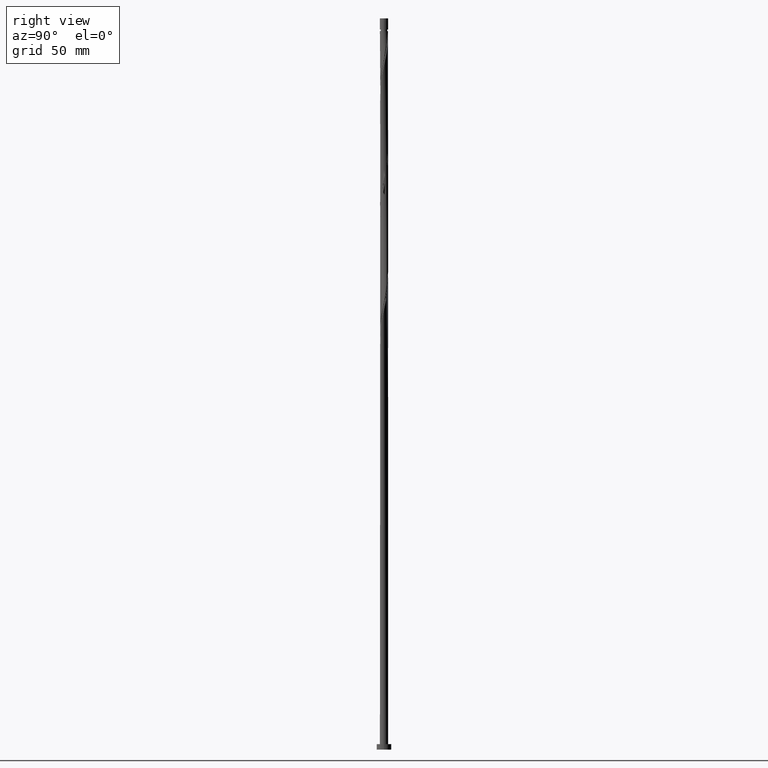
[diagram: clean part render]
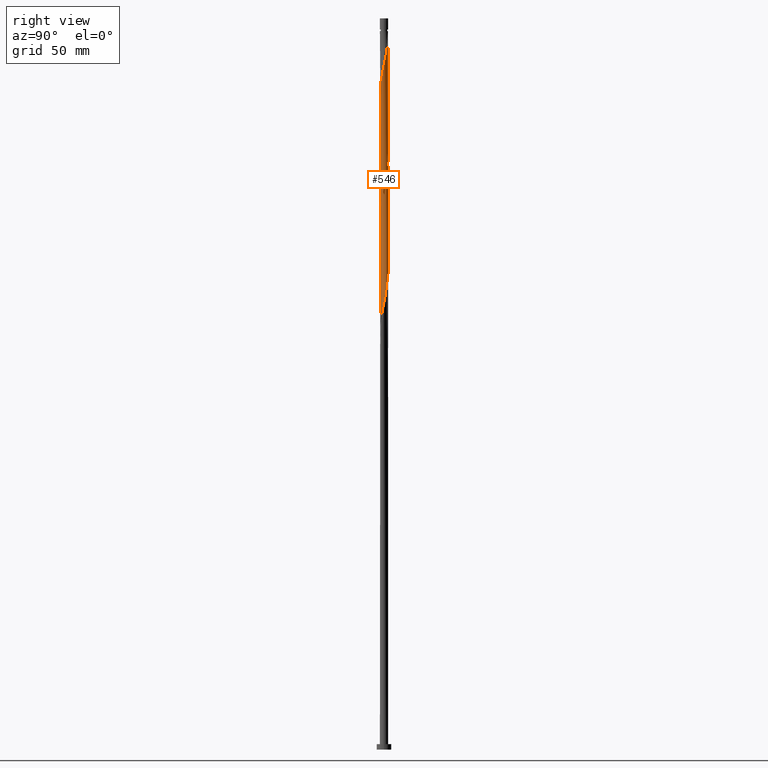
[diagram: same view with one face highlighted and labeled with its STEP entity id]
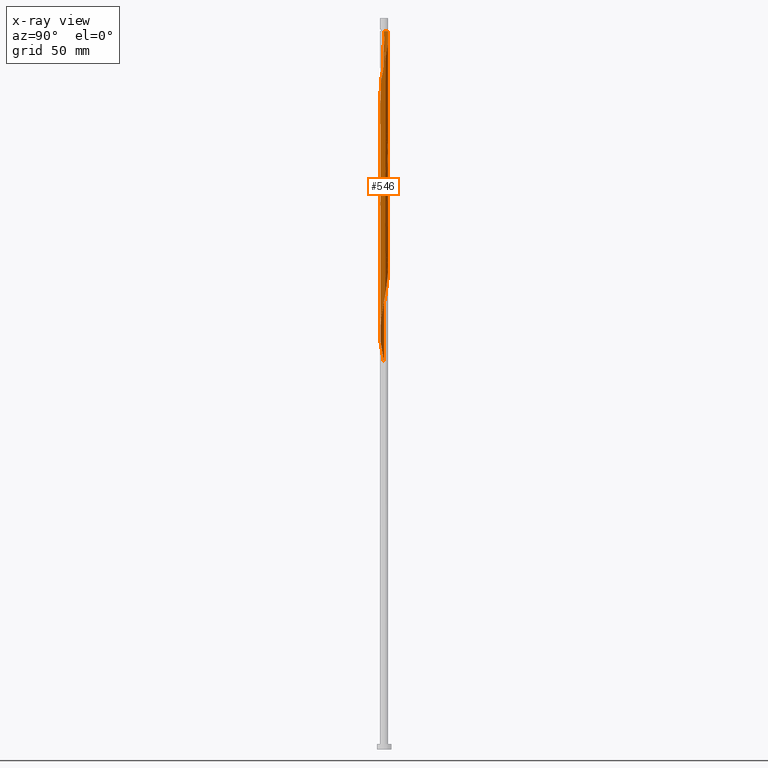
[diagram: x-ray of the same camera — body ghosted, the highlighted face saturated]
A machine part, right view. The second image highlights one B-rep face of the part: STEP entity #546.
The next image is the same camera in x-ray: the body ghosted, the highlighted face saturated — about 0% of this face is hidden behind the body in this view.
In plain terms, the highlighted cylindrical surface (bore or boss wall) has radius 2.25 mm, axis along (-0, -0, -1).
Its self-contained STEP definition (entity closure, byte-faithful):
#6 = CARTESIAN_POINT ( 'NONE',  ( 1.685713841995694517, -1.490257978641320591, 237.4851698468577581 ) ) ;
#16 = CARTESIAN_POINT ( 'NONE',  ( -2.249999999999999556, -1.091234325708519361E-15, 211.8328353126015031 ) ) ;
#20 = CARTESIAN_POINT ( 'NONE',  ( -1.685713841995694739, 1.490257978641319481, 337.4851698468577297 ) ) ;
#24 = AXIS2_PLACEMENT_3D ( 'NONE', #1795, #1063, #1500 ) ;
#32 = CARTESIAN_POINT ( 'NONE',  ( 2.133458188693677648, 0.7147420213586779258, 248.5962809579689576 ) ) ;
#36 = CARTESIAN_POINT ( 'NONE',  ( -1.529081416802026583, 1.667433642881041900, 336.3740587357467007 ) ) ;
#39 = CARTESIAN_POINT ( 'NONE',  ( -2.249999999999999556, -1.091234325708519361E-15, 211.8328353126015031 ) ) ;
#45 = CARTESIAN_POINT ( 'NONE',  ( 2.058335775126530542, 0.9389775127526232001, 249.7073920690799298 ) ) ;
#54 = CARTESIAN_POINT ( 'NONE',  ( 2.217145756437552517, -0.4502106477325793499, 243.0407254024133010 ) ) ;
#64 = CARTESIAN_POINT ( 'NONE',  ( -0.9338336956909288888, -2.047059996383163494, 353.0407254024133863 ) ) ;
#72 = CARTESIAN_POINT ( 'NONE',  ( 1.685713841995699624, 1.490257978641320147, 381.9296142913022436 ) ) ;
#80 = CARTESIAN_POINT ( 'NONE',  ( 1.658299266918881409, -1.520704948810359447, 366.3740587357467007 ) ) ;
#87 = CARTESIAN_POINT ( 'NONE',  ( -2.146118750789926644, -0.6757768178236830403, 344.1518365135244153 ) ) ;
#89 = CARTESIAN_POINT ( 'NONE',  ( -0.02048521978840224869, 2.249906743794110930, 328.5962809579688724 ) ) ;
#90 = ORIENTED_EDGE ( 'NONE', *, *, #1061, .T. ) ;
#103 = CARTESIAN_POINT ( 'NONE',  ( 1.148988371153740751, 1.948910119932247387, 385.2629476246355011 ) ) ;
#104 = VERTEX_POINT ( 'NONE', #129 ) ;
#106 = CARTESIAN_POINT ( 'NONE',  ( 2.250000000000000000, 2.755455298081544285E-16, 400.0000000000000000 ) ) ;
#113 = CARTESIAN_POINT ( 'NONE',  ( 2.217145756437552517, -0.4502106477325793499, 309.7073920690799582 ) ) ;
#118 = CARTESIAN_POINT ( 'NONE',  ( 1.685713841995694517, -1.490257978641320591, 304.1518365135244153 ) ) ;
#126 = CARTESIAN_POINT ( 'NONE',  ( 2.235440230695798114, 0.2555522940353255890, 313.0407254024133863 ) ) ;
#127 = CARTESIAN_POINT ( 'NONE',  ( 1.113311487977033387, 1.969508178038161583, 323.0407254024132726 ) ) ;
#129 = CARTESIAN_POINT ( 'NONE',  ( -2.250000000000002665, 7.773176018745549002E-16, 340.9152821588917277 ) ) ;
#134 = CARTESIAN_POINT ( 'NONE',  ( 0.4878194838710463443, 2.196481766634041044, 388.5962809579688155 ) ) ;
#146 = CARTESIAN_POINT ( 'NONE',  ( -0.8964053367179167786, -2.063724175441969511, 224.1518365135244721 ) ) ;
#155 = CARTESIAN_POINT ( 'NONE',  ( 2.262299859130769253, 0.02059805810591510897, 245.2629476246355011 ) ) ;
#164 = CARTESIAN_POINT ( 'NONE',  ( 0.2159895079371659254, 2.252059827154219818, 260.8185031801910441 ) ) ;
#169 = CARTESIAN_POINT ( 'NONE',  ( -2.250000000000000000, 0.000000000000000000, 400.0000000000000000 ) ) ;
#176 = CARTESIAN_POINT ( 'NONE',  ( 1.818131797628321555, 1.346410672519213536, 318.5962809579688155 ) ) ;
#177 = CARTESIAN_POINT ( 'NONE',  ( 1.529081416802026361, -1.667433642881042122, 236.3740587357466154 ) ) ;
#180 = CARTESIAN_POINT ( 'NONE',  ( -1.339034893977881335, 1.808171881406644088, 335.2629476246355580 ) ) ;
#183 = CARTESIAN_POINT ( 'NONE',  ( 0.6794991854588006142, 2.157940172845777216, 325.2629476246355580 ) ) ;
#190 = CARTESIAN_POINT ( 'NONE',  ( -2.075091745142291444, 0.9013429879147865087, 274.1518365135244153 ) ) ;
#220 = ORIENTED_EDGE ( 'NONE', *, *, #437, .F. ) ;
#226 = CARTESIAN_POINT ( 'NONE',  ( 2.239722807784165326, 0.2148062948133293015, 375.2629476246356148 ) ) ;
#228 = CARTESIAN_POINT ( 'NONE',  ( -0.4878194838710431802, 2.196481766634038379, 330.8185031801911009 ) ) ;
#242 = CARTESIAN_POINT ( 'NONE',  ( 2.146118750789921759, -0.6757768178236842616, 308.5962809579690429 ) ) ;
#251 = CARTESIAN_POINT ( 'NONE',  ( 2.249999999999999556, 1.719067773376434329E-16, 311.8328353126015031 ) ) ;
#260 = CARTESIAN_POINT ( 'NONE',  ( 1.529081416802026361, -1.667433642881042122, 303.0407254024134431 ) ) ;
#265 = CARTESIAN_POINT ( 'NONE',  ( -2.249999999999998668, 0.1076489983951990220, 344.6576201203707228 ) ) ;
#268 = CARTESIAN_POINT ( 'NONE',  ( -0.8964053367179167786, -2.063724175441969511, 290.8185031801911578 ) ) ;
#276 = CARTESIAN_POINT ( 'NONE',  ( 0.02048521978840171440, -2.249906743794110930, 295.2629476246355580 ) ) ;
#284 = CARTESIAN_POINT ( 'NONE',  ( 0.7186790202281153617, -2.145209872834075160, 231.9296142913022436 ) ) ;
#294 = CARTESIAN_POINT ( 'NONE',  ( -1.938233786377425716, -1.142694092635919034, 217.4851698468577865 ) ) ;
#305 = CARTESIAN_POINT ( 'NONE',  ( -1.818131797628320667, -1.346410672519214868, 218.5962809579688439 ) ) ;
#315 = CARTESIAN_POINT ( 'NONE',  ( -1.529081416802026583, 1.667433642881041900, 269.7073920690799582 ) ) ;
#328 = CARTESIAN_POINT ( 'NONE',  ( -2.058335775126530098, -0.9389775127526234222, 216.3740587357466154 ) ) ;
#338 = CARTESIAN_POINT ( 'NONE',  ( 1.305889112093235882, -1.832253701569833249, 364.1518365135244153 ) ) ;
#353 = CIRCLE ( 'NONE', #24, 2.249999999999964029 ) ;
#357 = CARTESIAN_POINT ( 'NONE',  ( 1.818131797628322888, -1.346410672519218421, 367.4851698468577865 ) ) ;
#365 = CARTESIAN_POINT ( 'NONE',  ( -1.148988371153740085, -1.948910119932248275, 351.9296142913021299 ) ) ;
#372 = CARTESIAN_POINT ( 'NONE',  ( 1.958719006165831056, 1.107212651158192784, 379.7073920690800151 ) ) ;
#386 = CARTESIAN_POINT ( 'NONE',  ( 0.02048521978840399382, 2.249906743794114927, 390.8185031801911009 ) ) ;
#388 = CARTESIAN_POINT ( 'NONE',  ( 0.000000000000000000, 0.000000000000000000, 400.0000000000000000 ) ) ;
#396 = CARTESIAN_POINT ( 'NONE',  ( 1.148988371153736088, -1.948910119932245166, 300.8185031801910441 ) ) ;
#402 = CARTESIAN_POINT ( 'NONE',  ( -2.075091745142291444, 0.9013429879147865087, 340.8185031801911009 ) ) ;
#409 = CARTESIAN_POINT ( 'NONE',  ( -1.113311487977033165, -1.969508178038161583, 289.7073920690799582 ) ) ;
#417 = CARTESIAN_POINT ( 'NONE',  ( -0.4477443466979827980, -2.204999999999999627, 293.0407254024133294 ) ) ;
#421 = CARTESIAN_POINT ( 'NONE',  ( -2.239722807784161773, 0.2148062948133313277, 344.1518365135245858 ) ) ;
#425 = CARTESIAN_POINT ( 'NONE',  ( -0.2569599475139706102, 2.247753660434001155, 263.0407254024132726 ) ) ;
#434 = CARTESIAN_POINT ( 'NONE',  ( -0.7186790202281158058, 2.145209872834075160, 265.2629476246355580 ) ) ;
#437 = EDGE_CURVE ( 'NONE', #1703, #827, #1062, .T. ) ;
#446 = CARTESIAN_POINT ( 'NONE',  ( -2.146118750789922203, 0.6757768178236830403, 275.2629476246355580 ) ) ;
#456 = EDGE_LOOP ( 'NONE', ( #1247, #1711, #1321, #90, #653, #552, #962, #220 ) ) ;
#459 = CARTESIAN_POINT ( 'NONE',  ( 0.4477443466979830200, 2.204999999999999627, 259.7073920690800719 ) ) ;
#466 = VERTEX_POINT ( 'NONE', #697 ) ;
#470 = CARTESIAN_POINT ( 'NONE',  ( 1.498466736209437267, 1.694999225101495144, 254.1518365135244721 ) ) ;
#481 = CARTESIAN_POINT ( 'NONE',  ( -2.250000000000002665, 7.773176018745549002E-16, 340.9152821588917845 ) ) ;
#489 = CARTESIAN_POINT ( 'NONE',  ( 2.249999999999999556, 1.719067773376434329E-16, 311.8328353126015031 ) ) ;
#497 = CARTESIAN_POINT ( 'NONE',  ( -2.075091745142295441, -0.9013429879147869528, 345.2629476246355011 ) ) ;
#500 = EDGE_CURVE ( 'NONE', #1278, #827, #964, .T. ) ;
#509 = CARTESIAN_POINT ( 'NONE',  ( 2.075091745142295885, 0.9013429879147859536, 378.5962809579688155 ) ) ;
#520 = CARTESIAN_POINT ( 'NONE',  ( 2.146118750789926644, 0.6757768178236822632, 377.4851698468577297 ) ) ;
#539 = CARTESIAN_POINT ( 'NONE',  ( -1.938233786377425716, -1.142694092635919034, 284.1518365135245290 ) ) ;
#545 = CARTESIAN_POINT ( 'NONE',  ( -2.133458188693677204, -0.7147420213586793691, 281.9296142913021868 ) ) ;
#546 = ADVANCED_FACE ( 'NONE', ( #955 ), #1272, .T. ) ;
#552 = ORIENTED_EDGE ( 'NONE', *, *, #500, .F. ) ;
#555 = DIRECTION ( 'NONE',  ( -0.000000000000000000, -0.000000000000000000, -1.000000000000000000 ) ) ;
#571 = EDGE_CURVE ( 'NONE', #827, #1679, #714, .T. ) ;
#574 = CARTESIAN_POINT ( 'NONE',  ( 1.938233786377425716, 1.142694092635918812, 317.4851698468577297 ) ) ;
#583 = CARTESIAN_POINT ( 'NONE',  ( -1.498466736209437045, -1.694999225101496032, 220.8185031801910156 ) ) ;
#594 = CARTESIAN_POINT ( 'NONE',  ( -2.250000000000000444, -0.1281909092544724904, 212.4384266219860535 ) ) ;
#599 = DIRECTION ( 'NONE',  ( -0.000000000000000000, -0.000000000000000000, -1.000000000000000000 ) ) ;
#604 = CARTESIAN_POINT ( 'NONE',  ( 1.148988371153736088, -1.948910119932245166, 234.1518365135244153 ) ) ;
#607 = CARTESIAN_POINT ( 'NONE',  ( -1.148988371153736976, 1.948910119932245166, 334.1518365135244153 ) ) ;
#616 = CARTESIAN_POINT ( 'NONE',  ( 0.4878194838710422920, -2.196481766634038379, 230.8185031801911578 ) ) ;
#625 = CARTESIAN_POINT ( 'NONE',  ( 0.9338336956909261133, -2.047059996383160829, 233.0407254024133863 ) ) ;
#629 = CARTESIAN_POINT ( 'NONE',  ( -1.958719006165827281, 1.107212651158191452, 339.7073920690800719 ) ) ;
#636 = CARTESIAN_POINT ( 'NONE',  ( -0.7186790202281182482, -2.145209872834078713, 354.1518365135244153 ) ) ;
#644 = CARTESIAN_POINT ( 'NONE',  ( 1.529081416802029691, 1.667433642881044786, 383.0407254024132726 ) ) ;
#653 = ORIENTED_EDGE ( 'NONE', *, *, #571, .F. ) ;
#660 = CARTESIAN_POINT ( 'NONE',  ( -0.02048521978840372668, -2.249906743794114927, 357.4851698468577297 ) ) ;
#668 = CARTESIAN_POINT ( 'NONE',  ( -1.529081416802029691, -1.667433642881045008, 349.7073920690799582 ) ) ;
#682 = CARTESIAN_POINT ( 'NONE',  ( 1.339034893977880891, -1.808171881406644310, 301.9296142913023004 ) ) ;
#689 = CARTESIAN_POINT ( 'NONE',  ( -2.262299859130769697, -0.02059805810591643777, 278.5962809579688724 ) ) ;
#697 = CARTESIAN_POINT ( 'NONE',  ( -2.249999999999964029, 0.000000000000000000, 393.0407254024133294 ) ) ;
#714 =( BOUNDED_CURVE ( )  B_SPLINE_CURVE ( 2, ( #1442, #1561, #1569, #113, #242, #1128, #1724, #1892, #118, #260, #682, #396, #1880, #1408, #815, #1138, #276, #829, #417, #1256, #268, #409, #1264, #992, #846, #1853, #539, #1860, #545, #1118, #1714, #689, #985, #1578, #446, #190, #1201, #1645, #1157, #315, #1756, #1301, #1768, #434, #1337, #425, #1632, #164, #459, #886, #1014, #1347, #1462, #470, #1598, #1452, #1610, #45, #32, #1486, #1024, #155, #1791, #54, #1170, #759, #1622, #749, #6, #177, #855, #604, #625, #284, #616, #718, #1002, #1496, #1037, #726, #146, #1191, #1779, #583, #1046, #305, #294, #328, #737, #864, #1311, #594, #16 ),
 .UNSPECIFIED., .F., .T. ) 
 B_SPLINE_CURVE_WITH_KNOTS ( ( 3, 2, 2, 2, 2, 2, 2, 2, 2, 2, 2, 2, 2, 2, 2, 2, 2, 2, 2, 2, 2, 2, 2, 2, 2, 2, 2, 2, 2, 2, 2, 2, 2, 2, 2, 2, 2, 2, 2, 2, 2, 2, 2, 2, 2, 2, 3 ),
 ( 0.5545286012773115170, 0.5583333333333333481, 0.5666666666666666519, 0.5749999999999999556, 0.5833333333333333703, 0.5916666666666666741, 0.5999999999999999778, 0.6083333333333332815, 0.6166666666666666963, 0.6250000000000000000, 0.6333333333333333037, 0.6416666666666667185, 0.6500000000000000222, 0.6583333333333333259, 0.6666666666666666297, 0.6750000000000000444, 0.6833333333333333481, 0.6916666666666666519, 0.6999999999999999556, 0.7083333333333333703, 0.7166666666666666741, 0.7249999999999999778, 0.7333333333333332815, 0.7416666666666666963, 0.7500000000000000000, 0.7583333333333333037, 0.7666666666666667185, 0.7750000000000000222, 0.7833333333333333259, 0.7916666666666666297, 0.8000000000000000444, 0.8083333333333333481, 0.8166666666666666519, 0.8249999999999999556, 0.8333333333333333703, 0.8416666666666666741, 0.8499999999999999778, 0.8583333333333332815, 0.8666666666666666963, 0.8750000000000000000, 0.8833333333333333037, 0.8916666666666667185, 0.9000000000000001332, 0.9083333333333334370, 0.9166666666666667407, 0.9250000000000000444, 0.9295286012773114059 ),
 .UNSPECIFIED. ) 
 CURVE ( )  GEOMETRIC_REPRESENTATION_ITEM ( )  RATIONAL_B_SPLINE_CURVE ( ( 0.9066196499552607868, 0.9068171577856736221, 0.9090909090909725654, 0.9041108139712207281, 0.9090909090909725654, 0.9041108139712207281, 0.9090909090909725654, 0.9041108139712207281, 0.9090909090909725654, 0.9041108139712207281, 0.9090909090909725654, 0.9041108139712207281, 0.9090909090909725654, 0.9041108139712207281, 0.9090909090909725654, 0.9041108139712207281, 0.9090909090909725654, 0.9041108139712207281, 0.9090909090909725654, 0.9041108139712207281, 0.9090909090909725654, 0.9041108139712207281, 0.9090909090909725654, 0.9041108139712207281, 0.9090909090909725654, 0.9041108139712207281, 0.9090909090909725654, 0.9041108139712207281, 0.9090909090909725654, 0.9041108139712207281, 0.9090909090909725654, 0.9041108139712207281, 0.9090909090909725654, 0.9041108139712207281, 0.9090909090909725654, 0.9041108139712207281, 0.9090909090909725654, 0.9041108139712207281, 0.9090909090909725654, 0.9041108139712207281, 0.9090909090909725654, 0.9041108139712207281, 0.9090909090909725654, 0.9041108139712207281, 0.9090909090909725654, 0.9041108139712207281, 0.9090909090909725654, 0.9041108139712207281, 0.9090909090909725654, 0.9041108139712207281, 0.9090909090909725654, 0.9041108139712207281, 0.9090909090909725654, 0.9041108139712207281, 0.9090909090909725654, 0.9041108139712207281, 0.9090909090909725654, 0.9041108139712207281, 0.9090909090909725654, 0.9041108139712207281, 0.9090909090909725654, 0.9041108139712207281, 0.9090909090909725654, 0.9041108139712207281, 0.9090909090909725654, 0.9041108139712207281, 0.9090909090909725654, 0.9041108139712207281, 0.9090909090909725654, 0.9041108139712207281, 0.9090909090909725654, 0.9041108139712207281, 0.9090909090909725654, 0.9041108139712207281, 0.9090909090909725654, 0.9041108139712207281, 0.9090909090909725654, 0.9041108139712207281, 0.9090909090909725654, 0.9041108139712207281, 0.9090909090909725654, 0.9041108139712207281, 0.9090909090909725654, 0.9041108139712207281, 0.9090909090909725654, 0.9041108139712207281, 0.9090909090909725654, 0.9041108139712207281, 0.9090909090909725654, 0.9041108139712207281, 0.9090909090909725654, 0.9063845652765196714, 0.9066196499552608978 ) ) 
 REPRESENTATION_ITEM ( '' )  );
#718 = CARTESIAN_POINT ( 'NONE',  ( 0.2569599475139702771, -2.247753660434001599, 229.7073920690799866 ) ) ;
#726 = CARTESIAN_POINT ( 'NONE',  ( -0.6794991854587991709, -2.157940172845777660, 225.2629476246355864 ) ) ;
#737 = CARTESIAN_POINT ( 'NONE',  ( -2.133458188693677204, -0.7147420213586793691, 215.2629476246355864 ) ) ;
#749 = CARTESIAN_POINT ( 'NONE',  ( 1.842346267189362008, -1.313082314401597506, 238.5962809579688724 ) ) ;
#759 = CARTESIAN_POINT ( 'NONE',  ( 2.075091745142291000, -0.9013429879147871748, 240.8185031801910725 ) ) ;
#780 = CARTESIAN_POINT ( 'NONE',  ( 2.217145756437556514, 0.4502106477325789058, 376.3740587357466438 ) ) ;
#787 = CARTESIAN_POINT ( 'NONE',  ( 2.208580602260827863, -0.4905065299647383137, 371.9296142913021299 ) ) ;
#815 = CARTESIAN_POINT ( 'NONE',  ( 0.4878194838710422920, -2.196481766634038379, 297.4851698468576728 ) ) ;
#827 = VERTEX_POINT ( 'NONE', #489 ) ;
#829 = CARTESIAN_POINT ( 'NONE',  ( -0.2159895079371669246, -2.252059827154220706, 294.1518365135243585 ) ) ;
#838 = EDGE_CURVE ( 'NONE', #104, #1829, #909, .T. ) ;
#846 = CARTESIAN_POINT ( 'NONE',  ( -1.658299266918878745, -1.520704948810356116, 286.3740587357467007 ) ) ;
#855 = CARTESIAN_POINT ( 'NONE',  ( 1.339034893977880891, -1.808171881406644310, 235.2629476246355580 ) ) ;
#856 = CARTESIAN_POINT ( 'NONE',  ( 1.305889112093236326, 1.832253701569827919, 321.9296142913023004 ) ) ;
#864 = CARTESIAN_POINT ( 'NONE',  ( -2.208580602260824755, -0.4905065299647350385, 214.1518365135244153 ) ) ;
#886 = CARTESIAN_POINT ( 'NONE',  ( 0.6794991854588006142, 2.157940172845777216, 258.5962809579688724 ) ) ;
#909 =( BOUNDED_CURVE ( )  B_SPLINE_CURVE ( 2, ( #481, #1076, #1531, #1506, #87, #497, #1686, #1671, #944, #668, #1801, #365, #64, #636, #1819, #917, #660, #1057, #1084, #1522, #1827, #1655, #338, #1835, #80, #357, #1211, #928, #1237, #787, #1515, #1227, #226, #780, #520, #509, #372, #1678, #72, #644, #1246, #103, #1702, #1438, #134, #1124, #386, #1109, #952 ),
 .UNSPECIFIED., .F., .T. ) 
 B_SPLINE_CURVE_WITH_KNOTS ( ( 3, 2, 2, 2, 2, 2, 2, 2, 2, 2, 2, 2, 2, 2, 2, 2, 2, 2, 2, 2, 2, 2, 2, 2, 3 ),
 ( 0.5545286012773110729, 0.5583333333333333481, 0.5666666666666666519, 0.5749999999999999556, 0.5833333333333332593, 0.5916666666666666741, 0.5999999999999999778, 0.6083333333333333925, 0.6166666666666666963, 0.6250000000000000000, 0.6333333333333333037, 0.6416666666666666075, 0.6500000000000000222, 0.6583333333333333259, 0.6666666666666667407, 0.6750000000000000444, 0.6833333333333333481, 0.6916666666666666519, 0.6999999999999999556, 0.7083333333333332593, 0.7166666666666666741, 0.7249999999999999778, 0.7333333333333333925, 0.7416666666666666963, 0.7500000000000000000 ),
 .UNSPECIFIED. ) 
 CURVE ( )  GEOMETRIC_REPRESENTATION_ITEM ( )  RATIONAL_B_SPLINE_CURVE ( ( 0.9066196499552687804, 0.9068171577856811716, 0.9090909090909804480, 0.9041108139712286107, 0.9090909090909804480, 0.9041108139712286107, 0.9090909090909804480, 0.9041108139712286107, 0.9090909090909804480, 0.9041108139712286107, 0.9090909090909804480, 0.9041108139712286107, 0.9090909090909804480, 0.9041108139712286107, 0.9090909090909804480, 0.9041108139712286107, 0.9090909090909804480, 0.9041108139712286107, 0.9090909090909804480, 0.9041108139712286107, 0.9090909090909804480, 0.9041108139712286107, 0.9090909090909804480, 0.9041108139712286107, 0.9090909090909804480, 0.9041108139712286107, 0.9090909090909804480, 0.9041108139712286107, 0.9090909090909804480, 0.9041108139712286107, 0.9090909090909804480, 0.9041108139712286107, 0.9090909090909804480, 0.9041108139712286107, 0.9090909090909804480, 0.9041108139712286107, 0.9090909090909804480, 0.9041108139712286107, 0.9090909090909804480, 0.9041108139712286107, 0.9090909090909804480, 0.9041108139712286107, 0.9090909090909804480, 0.9041108139712286107, 0.9090909090909804480, 0.9041108139712286107, 0.9090909090909804480, 0.9041108139712286107, 0.9090909090909804480 ) ) 
 REPRESENTATION_ITEM ( '' )  );
#917 = CARTESIAN_POINT ( 'NONE',  ( -0.2569599475139717204, -2.247753660434005152, 356.3740587357465870 ) ) ;
#920 = AXIS2_PLACEMENT_3D ( 'NONE', #388, #1425, #1112 ) ;
#927 = LINE ( 'NONE', #1056, #1570 ) ;
#928 = CARTESIAN_POINT ( 'NONE',  ( 2.058335775126532319, -0.9389775127526261977, 369.7073920690799582 ) ) ;
#935 = DIRECTION ( 'NONE',  ( -0.000000000000000000, -0.000000000000000000, -1.000000000000000000 ) ) ;
#944 = CARTESIAN_POINT ( 'NONE',  ( -1.685713841995698958, -1.490257978641321257, 348.5962809579688724 ) ) ;
#952 = CARTESIAN_POINT ( 'NONE',  ( -0.4477443466980616793, 2.205000000000590710, 393.0407254024134431 ) ) ;
#955 = FACE_OUTER_BOUND ( 'NONE', #456, .T. ) ;
#962 = ORIENTED_EDGE ( 'NONE', *, *, #500, .T. ) ;
#964 = LINE ( 'NONE', #106, #1416 ) ;
#985 = CARTESIAN_POINT ( 'NONE',  ( -2.239722807784161773, 0.2148062948133313277, 277.4851698468578434 ) ) ;
#992 = CARTESIAN_POINT ( 'NONE',  ( -1.498466736209437045, -1.694999225101496032, 287.4851698468577865 ) ) ;
#1002 = CARTESIAN_POINT ( 'NONE',  ( 0.02048521978840171440, -2.249906743794110930, 228.5962809579688724 ) ) ;
#1005 = CARTESIAN_POINT ( 'NONE',  ( 2.250000000000000000, 2.755455298081544285E-16, 393.0407254024134431 ) ) ;
#1014 = CARTESIAN_POINT ( 'NONE',  ( 0.8964053367179171117, 2.063724175441969511, 257.4851698468578434 ) ) ;
#1024 = CARTESIAN_POINT ( 'NONE',  ( 2.235440230695798114, 0.2555522940353255890, 246.3740587357466438 ) ) ;
#1030 = CARTESIAN_POINT ( 'NONE',  ( -0.4477443466980616793, 2.205000000000590710, 393.0407254024134431 ) ) ;
#1037 = CARTESIAN_POINT ( 'NONE',  ( -0.4477443466979827980, -2.204999999999999627, 226.3740587357467007 ) ) ;
#1046 = CARTESIAN_POINT ( 'NONE',  ( -1.658299266918878745, -1.520704948810356116, 219.7073920690799582 ) ) ;
#1056 = CARTESIAN_POINT ( 'NONE',  ( -2.250000000000000000, 0.000000000000000000, 400.0000000000000000 ) ) ;
#1057 = CARTESIAN_POINT ( 'NONE',  ( 0.2159895079371652871, -2.252059827154224259, 358.5962809579689292 ) ) ;
#1061 = EDGE_CURVE ( 'NONE', #104, #1679, #927, .T. ) ;
#1062 =( BOUNDED_CURVE ( )  B_SPLINE_CURVE ( 2, ( #1889, #265, #421, #1864, #1718, #402, #629, #1315, #20, #36, #180, #607, #1141, #1388, #228, #1553, #89, #1852, #1111, #183, #1195, #127, #856, #1712, #1423, #176, #574, #1870, #1738, #1552, #126, #1587, #251 ),
 .UNSPECIFIED., .F., .T. ) 
 B_SPLINE_CURVE_WITH_KNOTS ( ( 3, 2, 2, 2, 2, 2, 2, 2, 2, 2, 2, 2, 2, 2, 2, 2, 3 ),
 ( 0.4295286012773117945, 0.4333333333333333481, 0.4416666666666666519, 0.4500000000000000111, 0.4583333333333333148, 0.4666666666666666741, 0.4749999999999999778, 0.4833333333333333370, 0.4916666666666666408, 0.5000000000000000000, 0.5083333333333333037, 0.5166666666666667185, 0.5250000000000000222, 0.5333333333333333259, 0.5416666666666666297, 0.5500000000000000444, 0.5545286012773115170 ),
 .UNSPECIFIED. ) 
 CURVE ( )  GEOMETRIC_REPRESENTATION_ITEM ( )  RATIONAL_B_SPLINE_CURVE ( ( 0.9066196499552610089, 0.9068171577856738441, 0.9090909090909725654, 0.9041108139712207281, 0.9090909090909725654, 0.9041108139712207281, 0.9090909090909725654, 0.9041108139712207281, 0.9090909090909725654, 0.9041108139712207281, 0.9090909090909725654, 0.9041108139712207281, 0.9090909090909725654, 0.9041108139712207281, 0.9090909090909725654, 0.9041108139712207281, 0.9090909090909725654, 0.9041108139712207281, 0.9090909090909725654, 0.9041108139712207281, 0.9090909090909725654, 0.9041108139712207281, 0.9090909090909725654, 0.9041108139712207281, 0.9090909090909725654, 0.9041108139712207281, 0.9090909090909725654, 0.9041108139712207281, 0.9090909090909725654, 0.9041108139712207281, 0.9090909090909725654, 0.9063845652765196714, 0.9066196499552607868 ) ) 
 REPRESENTATION_ITEM ( '' )  );
#1063 = DIRECTION ( 'NONE',  ( -0.000000000000000000, -0.000000000000000000, -1.000000000000000000 ) ) ;
#1076 = CARTESIAN_POINT ( 'NONE',  ( -2.250000000000003997, -0.1076489983951769008, 341.4238306844558224 ) ) ;
#1084 = CARTESIAN_POINT ( 'NONE',  ( 0.4477443466979825759, -2.205000000000003180, 359.7073920690800151 ) ) ;
#1109 = CARTESIAN_POINT ( 'NONE',  ( -0.2159895079371639826, 2.252059827154224259, 391.9296142913021868 ) ) ;
#1111 = CARTESIAN_POINT ( 'NONE',  ( 0.4477443466979830200, 2.204999999999999627, 326.3740587357467575 ) ) ;
#1112 = DIRECTION ( 'NONE',  ( -1.000000000000000000, 0.000000000000000000, 0.000000000000000000 ) ) ;
#1118 = CARTESIAN_POINT ( 'NONE',  ( -2.208580602260824755, -0.4905065299647350385, 280.8185031801910441 ) ) ;
#1124 = CARTESIAN_POINT ( 'NONE',  ( 0.2569599475139721645, 2.247753660434005152, 389.7073920690799014 ) ) ;
#1128 = CARTESIAN_POINT ( 'NONE',  ( 2.075091745142291000, -0.9013429879147871748, 307.4851698468576728 ) ) ;
#1138 = CARTESIAN_POINT ( 'NONE',  ( 0.2569599475139702771, -2.247753660434001599, 296.3740587357467007 ) ) ;
#1141 = CARTESIAN_POINT ( 'NONE',  ( -0.9338336956909263353, 2.047059996383160829, 333.0407254024135000 ) ) ;
#1157 = CARTESIAN_POINT ( 'NONE',  ( -1.685713841995694739, 1.490257978641319481, 270.8185031801911009 ) ) ;
#1170 = CARTESIAN_POINT ( 'NONE',  ( 2.146118750789921759, -0.6757768178236842616, 241.9296142913022436 ) ) ;
#1191 = CARTESIAN_POINT ( 'NONE',  ( -1.113311487977033165, -1.969508178038161583, 223.0407254024133010 ) ) ;
#1195 = CARTESIAN_POINT ( 'NONE',  ( 0.8964053367179171117, 2.063724175441969511, 324.1518365135244721 ) ) ;
#1201 = CARTESIAN_POINT ( 'NONE',  ( -1.958719006165827281, 1.107212651158191452, 273.0407254024133863 ) ) ;
#1211 = CARTESIAN_POINT ( 'NONE',  ( 1.938233786377428158, -1.142694092635922587, 368.5962809579689292 ) ) ;
#1227 = CARTESIAN_POINT ( 'NONE',  ( 2.262299859130773694, -0.02059805810591844311, 374.1518365135244721 ) ) ;
#1237 = CARTESIAN_POINT ( 'NONE',  ( 2.133458188693681201, -0.7147420213586823667, 370.8185031801912146 ) ) ;
#1246 = CARTESIAN_POINT ( 'NONE',  ( 1.339034893977885332, 1.808171881406645642, 384.1518365135244721 ) ) ;
#1247 = ORIENTED_EDGE ( 'NONE', *, *, #1617, .F. ) ;
#1256 = CARTESIAN_POINT ( 'NONE',  ( -0.6794991854587991709, -2.157940172845777660, 291.9296142913021868 ) ) ;
#1264 = CARTESIAN_POINT ( 'NONE',  ( -1.305889112093234994, -1.832253701569828808, 288.5962809579689861 ) ) ;
#1272 = CYLINDRICAL_SURFACE ( 'NONE', #920, 2.250000000000000000 ) ;
#1278 = VERTEX_POINT ( 'NONE', #1005 ) ;
#1301 = CARTESIAN_POINT ( 'NONE',  ( -1.148988371153736976, 1.948910119932245166, 267.4851698468577865 ) ) ;
#1311 = CARTESIAN_POINT ( 'NONE',  ( -2.235440230695798114, -0.2555522940353258110, 213.0407254024133010 ) ) ;
#1315 = CARTESIAN_POINT ( 'NONE',  ( -1.842346267189362896, 1.313082314401596618, 338.5962809579688155 ) ) ;
#1317 = CARTESIAN_POINT ( 'NONE',  ( -2.250000000000000000, 3.587619700959514951E-16, 345.1661686459348175 ) ) ;
#1321 = ORIENTED_EDGE ( 'NONE', *, *, #838, .F. ) ;
#1337 = CARTESIAN_POINT ( 'NONE',  ( -0.4878194838710431802, 2.196481766634038379, 264.1518365135244153 ) ) ;
#1347 = CARTESIAN_POINT ( 'NONE',  ( 1.113311487977033387, 1.969508178038161583, 256.3740587357466438 ) ) ;
#1388 = CARTESIAN_POINT ( 'NONE',  ( -0.7186790202281158058, 2.145209872834075160, 331.9296142913022436 ) ) ;
#1408 = CARTESIAN_POINT ( 'NONE',  ( 0.7186790202281153617, -2.145209872834075160, 298.5962809579689292 ) ) ;
#1416 = VECTOR ( 'NONE', #555, 1000.000000000000000 ) ;
#1423 = CARTESIAN_POINT ( 'NONE',  ( 1.658299266918879189, 1.520704948810356116, 319.7073920690799582 ) ) ;
#1425 = DIRECTION ( 'NONE',  ( -0.000000000000000000, -0.000000000000000000, -1.000000000000000000 ) ) ;
#1438 = CARTESIAN_POINT ( 'NONE',  ( 0.7186790202281185813, 2.145209872834078713, 387.4851698468577297 ) ) ;
#1442 = CARTESIAN_POINT ( 'NONE',  ( 2.249999999999999556, 1.719067773376434329E-16, 311.8328353126015031 ) ) ;
#1452 = CARTESIAN_POINT ( 'NONE',  ( 1.818131797628321555, 1.346410672519213536, 251.9296142913022152 ) ) ;
#1462 = CARTESIAN_POINT ( 'NONE',  ( 1.305889112093236326, 1.832253701569827919, 255.2629476246356148 ) ) ;
#1473 = EDGE_CURVE ( 'NONE', #466, #1829, #353, .T. ) ;
#1486 = CARTESIAN_POINT ( 'NONE',  ( 2.208580602260824755, 0.4905065299647340393, 247.4851698468577297 ) ) ;
#1496 = CARTESIAN_POINT ( 'NONE',  ( -0.2159895079371669246, -2.252059827154220706, 227.4851698468577581 ) ) ;
#1500 = DIRECTION ( 'NONE',  ( -1.000000000000000000, 0.000000000000000000, 0.000000000000000000 ) ) ;
#1506 = CARTESIAN_POINT ( 'NONE',  ( -2.217145756437556514, -0.4502106477325790723, 343.0407254024132726 ) ) ;
#1515 = CARTESIAN_POINT ( 'NONE',  ( 2.235440230695801667, -0.2555522940353273098, 373.0407254024132726 ) ) ;
#1522 = CARTESIAN_POINT ( 'NONE',  ( 0.6794991854587989488, -2.157940172845781657, 360.8185031801911009 ) ) ;
#1531 = CARTESIAN_POINT ( 'NONE',  ( -2.239722807784164438, -0.2148062948133304950, 341.9296142913022436 ) ) ;
#1552 = CARTESIAN_POINT ( 'NONE',  ( 2.208580602260824755, 0.4905065299647340393, 314.1518365135243585 ) ) ;
#1553 = CARTESIAN_POINT ( 'NONE',  ( -0.2569599475139706102, 2.247753660434001155, 329.7073920690800151 ) ) ;
#1561 = CARTESIAN_POINT ( 'NONE',  ( 2.250000000000000444, -0.1076489983951914725, 311.3242867870374084 ) ) ;
#1569 = CARTESIAN_POINT ( 'NONE',  ( 2.239722807784161773, -0.2148062948133320493, 310.8185031801911009 ) ) ;
#1570 = VECTOR ( 'NONE', #935, 1000.000000000000000 ) ;
#1578 = CARTESIAN_POINT ( 'NONE',  ( -2.217145756437552517, 0.4502106477325790168, 276.3740587357465870 ) ) ;
#1587 = CARTESIAN_POINT ( 'NONE',  ( 2.250000000000000444, 0.1281909092544685491, 312.4384266219860820 ) ) ;
#1598 = CARTESIAN_POINT ( 'NONE',  ( 1.658299266918879189, 1.520704948810356116, 253.0407254024133579 ) ) ;
#1610 = CARTESIAN_POINT ( 'NONE',  ( 1.938233786377425716, 1.142694092635918812, 250.8185031801911009 ) ) ;
#1617 = EDGE_CURVE ( 'NONE', #466, #1703, #1784, .T. ) ;
#1622 = CARTESIAN_POINT ( 'NONE',  ( 1.958719006165827281, -1.107212651158192118, 239.7073920690800435 ) ) ;
#1632 = CARTESIAN_POINT ( 'NONE',  ( -0.02048521978840224869, 2.249906743794110930, 261.9296142913022436 ) ) ;
#1645 = CARTESIAN_POINT ( 'NONE',  ( -1.842346267189362896, 1.313082314401596618, 271.9296142913022436 ) ) ;
#1655 = CARTESIAN_POINT ( 'NONE',  ( 1.113311487977034053, -1.969508178038165802, 363.0407254024132726 ) ) ;
#1671 = CARTESIAN_POINT ( 'NONE',  ( -1.842346267189367337, -1.313082314401598394, 347.4851698468576728 ) ) ;
#1678 = CARTESIAN_POINT ( 'NONE',  ( 1.842346267189367559, 1.313082314401597728, 380.8185031801911578 ) ) ;
#1679 = VERTEX_POINT ( 'NONE', #39 ) ;
#1686 = CARTESIAN_POINT ( 'NONE',  ( -1.958719006165831056, -1.107212651158192784, 346.3740587357466438 ) ) ;
#1702 = CARTESIAN_POINT ( 'NONE',  ( 0.9338336956909291109, 2.047059996383163494, 386.3740587357467007 ) ) ;
#1703 = VERTEX_POINT ( 'NONE', #1317 ) ;
#1711 = ORIENTED_EDGE ( 'NONE', *, *, #1473, .T. ) ;
#1712 = CARTESIAN_POINT ( 'NONE',  ( 1.498466736209437267, 1.694999225101495144, 320.8185031801911009 ) ) ;
#1714 = CARTESIAN_POINT ( 'NONE',  ( -2.235440230695798114, -0.2555522940353258110, 279.7073920690800719 ) ) ;
#1718 = CARTESIAN_POINT ( 'NONE',  ( -2.146118750789922203, 0.6757768178236830403, 341.9296142913022436 ) ) ;
#1724 = CARTESIAN_POINT ( 'NONE',  ( 1.958719006165827281, -1.107212651158192118, 306.3740587357467007 ) ) ;
#1726 = VECTOR ( 'NONE', #599, 1000.000000000000000 ) ;
#1738 = CARTESIAN_POINT ( 'NONE',  ( 2.133458188693677648, 0.7147420213586779258, 315.2629476246356148 ) ) ;
#1756 = CARTESIAN_POINT ( 'NONE',  ( -1.339034893977881335, 1.808171881406644088, 268.5962809579688724 ) ) ;
#1768 = CARTESIAN_POINT ( 'NONE',  ( -0.9338336956909263353, 2.047059996383160829, 266.3740587357466438 ) ) ;
#1779 = CARTESIAN_POINT ( 'NONE',  ( -1.305889112093234994, -1.832253701569828808, 221.9296142913022436 ) ) ;
#1784 = LINE ( 'NONE', #169, #1726 ) ;
#1791 = CARTESIAN_POINT ( 'NONE',  ( 2.239722807784161773, -0.2148062948133320493, 244.1518365135244721 ) ) ;
#1795 = CARTESIAN_POINT ( 'NONE',  ( 0.000000000000000000, 0.000000000000000000, 393.0407254024133294 ) ) ;
#1801 = CARTESIAN_POINT ( 'NONE',  ( -1.339034893977885110, -1.808171881406646087, 350.8185031801911578 ) ) ;
#1819 = CARTESIAN_POINT ( 'NONE',  ( -0.4878194838710451786, -2.196481766634041044, 355.2629476246355011 ) ) ;
#1827 = CARTESIAN_POINT ( 'NONE',  ( 0.8964053367179166676, -2.063724175441973951, 361.9296142913023004 ) ) ;
#1829 = VERTEX_POINT ( 'NONE', #1030 ) ;
#1835 = CARTESIAN_POINT ( 'NONE',  ( 1.498466736209437933, -1.694999225101500251, 365.2629476246353875 ) ) ;
#1852 = CARTESIAN_POINT ( 'NONE',  ( 0.2159895079371659254, 2.252059827154219818, 327.4851698468576728 ) ) ;
#1853 = CARTESIAN_POINT ( 'NONE',  ( -1.818131797628320667, -1.346410672519214868, 285.2629476246355580 ) ) ;
#1860 = CARTESIAN_POINT ( 'NONE',  ( -2.058335775126530098, -0.9389775127526234222, 283.0407254024133863 ) ) ;
#1864 = CARTESIAN_POINT ( 'NONE',  ( -2.217145756437552517, 0.4502106477325790168, 343.0407254024133294 ) ) ;
#1870 = CARTESIAN_POINT ( 'NONE',  ( 2.058335775126530542, 0.9389775127526232001, 316.3740587357467575 ) ) ;
#1880 = CARTESIAN_POINT ( 'NONE',  ( 0.9338336956909261133, -2.047059996383160829, 299.7073920690799582 ) ) ;
#1889 = CARTESIAN_POINT ( 'NONE',  ( -2.250000000000000000, 3.587619700959514951E-16, 345.1661686459348175 ) ) ;
#1892 = CARTESIAN_POINT ( 'NONE',  ( 1.842346267189362008, -1.313082314401597506, 305.2629476246355011 ) ) ;